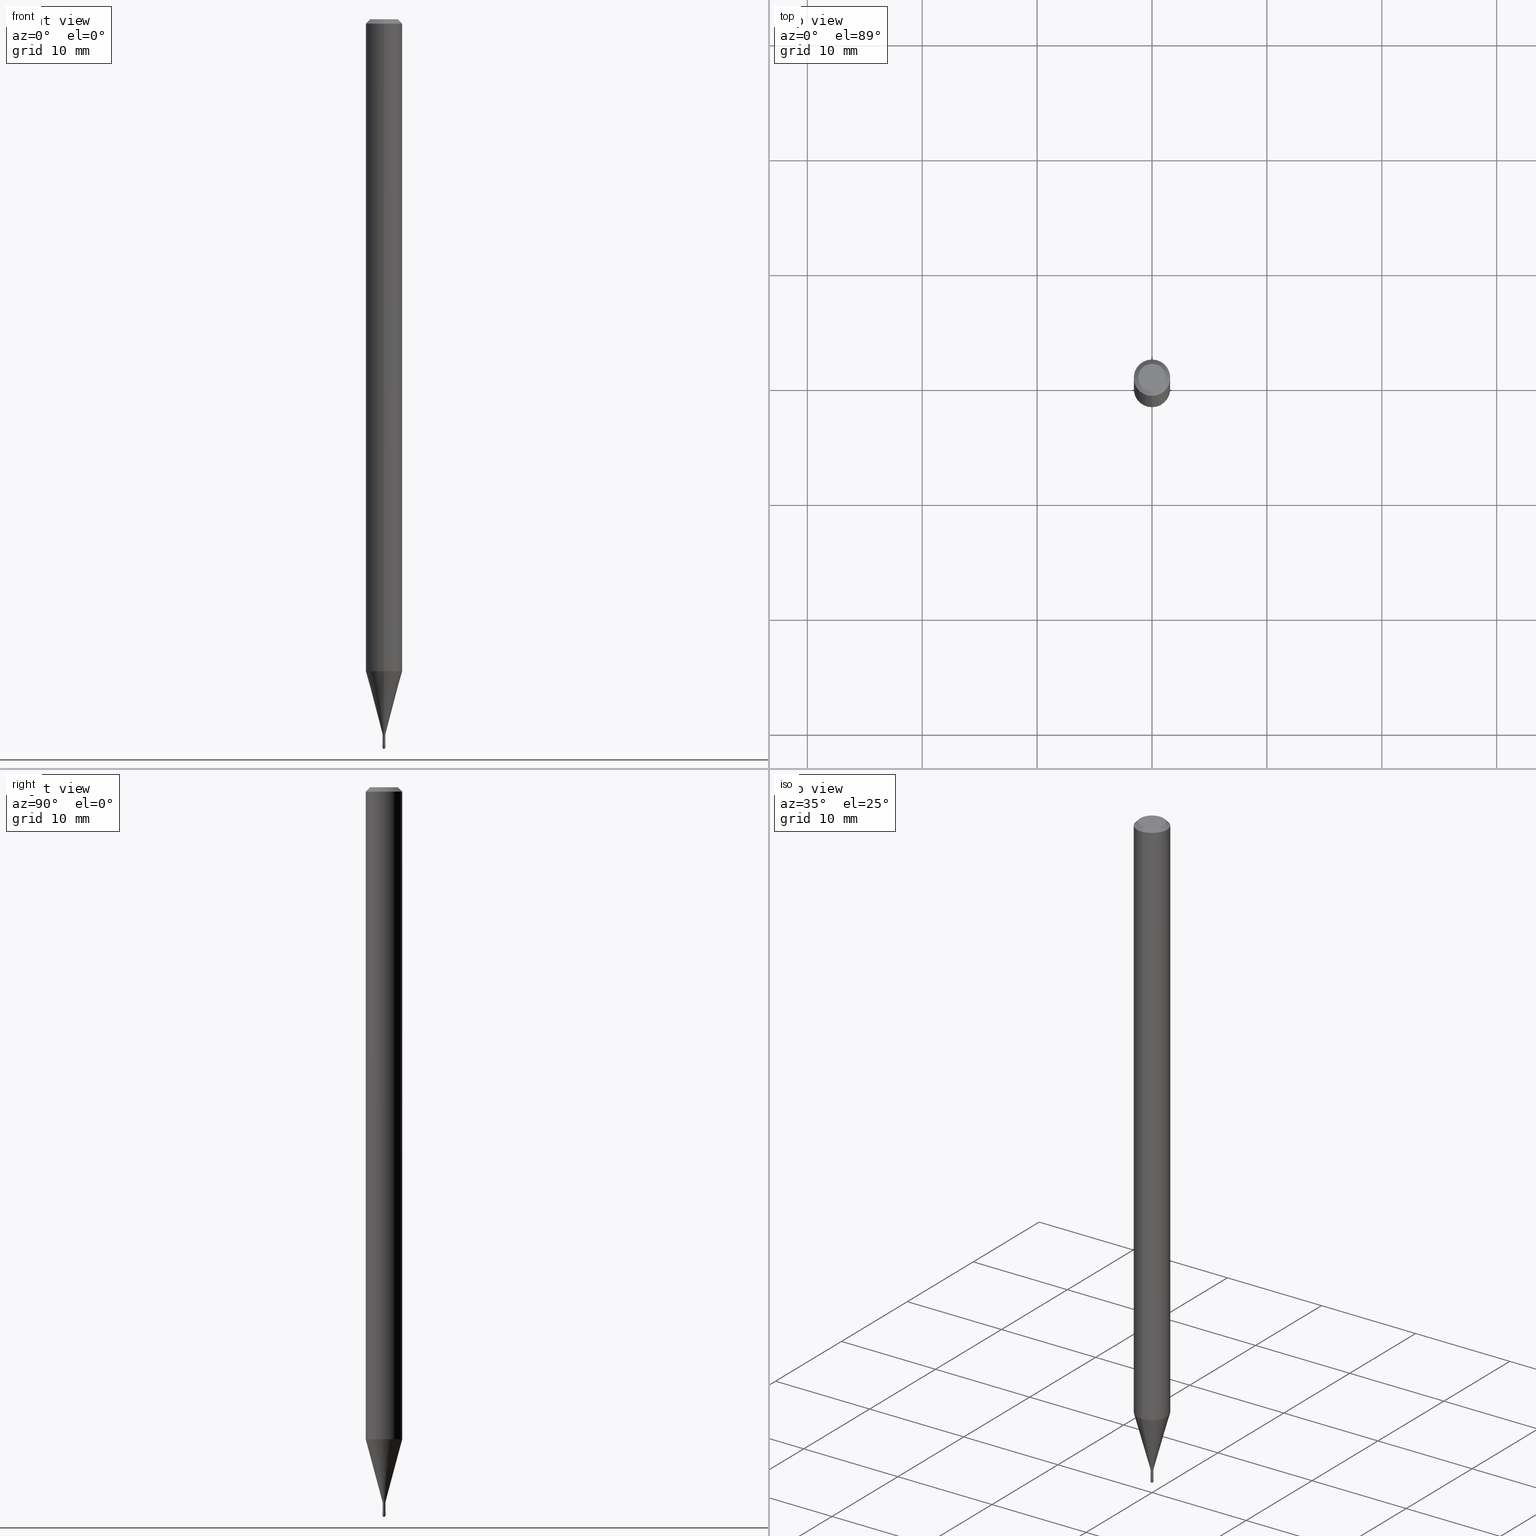
[diagram: canonical four-view strip — front | top / right | iso, engineering-drawing reading convention]
A machine part, canonical four-view strip (front | top / right | iso — engineering-drawing reading convention). The complete STEP part file that produces these views, byte-faithful:
ISO-10303-21;
HEADER;
FILE_DESCRIPTION (( 'STEP AP203' ),
    '1' );
FILE_NAME ('09411.STEP',
    '2024-04-09T22:51:25',
    ( '' ),
    ( '' ),
    'SwSTEP 2.0',
    'SolidWorks 2023',
    '' );
FILE_SCHEMA (( 'CONFIG_CONTROL_DESIGN' ));
ENDSEC;

DATA;
#1 = AXIS2_PLACEMENT_3D ( 'NONE', #196, #412, #189 ) ;
#2 = ORIENTED_EDGE ( 'NONE', *, *, #7, .F. ) ;
#3 = ORIENTED_EDGE ( 'NONE', *, *, #434, .T. ) ;
#4 = CYLINDRICAL_SURFACE ( 'NONE', #131, 0.004700000000000007991 ) ;
#5 = PERSON_AND_ORGANIZATION ( #227, #132 ) ;
#6 = ORIENTED_EDGE ( 'NONE', *, *, #65, .F. ) ;
#7 = EDGE_CURVE ( 'NONE', #94, #514, #266, .T. ) ;
#8 = DIRECTION ( 'NONE',  ( -6.982962677686265922E-15, -1.000000000000000000, 3.493109718909401107E-15 ) ) ;
#9 = APPROVAL_STATUS ( 'not_yet_approved' ) ;
#10 = DATE_TIME_ROLE ( 'creation_date' ) ;
#11 = ORIENTED_EDGE ( 'NONE', *, *, #445, .T. ) ;
#12 = CONICAL_SURFACE ( 'NONE', #473, 0.005211112605663986361, 0.2617993877991499629 ) ;
#13 = VECTOR ( 'NONE', #562, 39.37007874015748143 ) ;
#14 = DIRECTION ( 'NONE',  ( -6.982962677686265133E-15, -1.000000000000000000, 3.493109718909404657E-15 ) ) ;
#15 = DIRECTION ( 'NONE',  ( -2.444331714462359119E-29, 3.493109718909404657E-15, 1.000000000000000000 ) ) ;
#16 = FACE_OUTER_BOUND ( 'NONE', #273, .T. ) ;
#17 = PRODUCT_DEFINITION_SHAPE ( 'NONE', 'NONE',  #441 ) ;
#18 = EDGE_CURVE ( 'NONE', #46, #361, #148, .T. ) ;
#19 = ORIENTED_EDGE ( 'NONE', *, *, #342, .F. ) ;
#20 = DIRECTION ( 'NONE',  ( -2.445468806185136597E-29, 3.491481338843145583E-15, 1.000000000000000000 ) ) ;
#21 = AXIS2_PLACEMENT_3D ( 'NONE', #32, #294, #71 ) ;
#22 = DIRECTION ( 'NONE',  ( -2.438088387897960049E-29, 3.491481338843145188E-15, 1.000000000000000000 ) ) ;
#23 = EDGE_CURVE ( 'NONE', #529, #78, #43, .T. ) ;
#24 = DIRECTION ( 'NONE',  ( -2.445468806185136597E-29, 3.491481338843145583E-15, 1.000000000000000000 ) ) ;
#25 = ADVANCED_FACE ( 'NONE', ( #283 ), #243, .T. ) ;
#26 = AXIS2_PLACEMENT_3D ( 'NONE', #328, #444, #272 ) ;
#27 = LINE ( 'NONE', #515, #450 ) ;
#28 = ORIENTED_EDGE ( 'NONE', *, *, #309, .F. ) ;
#29 = DIRECTION ( 'NONE',  ( -6.982962677686265922E-15, -1.000000000000000000, 4.370956789862821150E-15 ) ) ;
#30 = CARTESIAN_POINT ( 'NONE',  ( 6.101444671431915719E-29, -8.711245940413648329E-15, -2.495000000000000107 ) ) ;
#31 = ORIENTED_EDGE ( 'NONE', *, *, #115, .T. ) ;
#32 = CARTESIAN_POINT ( 'NONE',  ( 3.316907271900976096E-16, 0.04749999999999999362, 3.177914578822727297E-17 ) ) ;
#33 = DIRECTION ( 'NONE',  ( -2.445468806185136877E-29, 3.491481338843145188E-15, 1.000000000000000000 ) ) ;
#34 = DIRECTION ( 'NONE',  ( 1.000000000000000000, -6.982962677686265922E-15, 4.883557194083112340E-29 ) ) ;
#35 = ORIENTED_EDGE ( 'NONE', *, *, #505, .F. ) ;
#36 = CARTESIAN_POINT ( 'NONE',  ( -3.281992458506486833E-17, -0.004700000000008682476, -2.482015037688680259 ) ) ;
#37 = AXIS2_PLACEMENT_3D ( 'NONE', #321, #152, #542 ) ;
#38 = LOCAL_TIME ( 18, 51, 25.00000000000000000, #223 ) ;
#39 = PLANE ( 'NONE',  #112 ) ;
#40 = LINE ( 'NONE', #276, #482 ) ;
#41 = APPROVAL_DATE_TIME ( #301, #384 ) ;
#42 = VERTEX_POINT ( 'NONE', #240 ) ;
#43 = CIRCLE ( 'NONE', #413, 0.06250000000000000000 ) ;
#44 = AXIS2_PLACEMENT_3D ( 'NONE', #127, #134, #8 ) ;
#45 = APPROVAL_PERSON_ORGANIZATION ( #5, #485, #82 ) ;
#46 = VERTEX_POINT ( 'NONE', #534 ) ;
#47 = APPLICATION_PROTOCOL_DEFINITION ( 'international standard', 'config_control_design', 1994, #228 ) ;
#48 = VERTEX_POINT ( 'NONE', #495 ) ;
#49 = MECHANICAL_CONTEXT ( 'NONE', #228, 'mechanical' ) ;
#50 = AXIS2_PLACEMENT_3D ( 'NONE', #496, #89, #446 ) ;
#51 = ORIENTED_EDGE ( 'NONE', *, *, #222, .T. ) ;
#52 = AXIS2_PLACEMENT_3D ( 'NONE', #551, #77, #241 ) ;
#53 = DIRECTION ( 'NONE',  ( -2.445468806185136597E-29, 3.491481338843145583E-15, 1.000000000000000000 ) ) ;
#54 = EDGE_CURVE ( 'NONE', #190, #126, #556, .T. ) ;
#55 = DIRECTION ( 'NONE',  ( -2.444331714462359119E-29, 3.493109718909404657E-15, 1.000000000000000000 ) ) ;
#56 = ORIENTED_EDGE ( 'NONE', *, *, #471, .F. ) ;
#57 = DIRECTION ( 'NONE',  ( -6.982962677686265922E-15, -1.000000000000000000, 3.493109718909401107E-15 ) ) ;
#58 = CARTESIAN_POINT ( 'NONE',  ( 0.004999999999999997502, -8.711245940413648329E-15, -2.484999999999999876 ) ) ;
#59 = CARTESIAN_POINT ( 'NONE',  ( 6.074164310438962886E-29, -8.680377651489870003E-15, -2.484999999999999876 ) ) ;
#60 = DIRECTION ( 'NONE',  ( -6.982962677686265133E-15, -1.000000000000000000, 3.493109718909404657E-15 ) ) ;
#61 = VECTOR ( 'NONE', #33, 39.37007874015748143 ) ;
#62 = LOCAL_TIME ( 18, 51, 25.00000000000000000, #183 ) ;
#63 = DIRECTION ( 'NONE',  ( -2.444331714462359119E-29, 3.493109718909404657E-15, 1.000000000000000000 ) ) ;
#64 = EDGE_CURVE ( 'NONE', #264, #513, #176, .T. ) ;
#65 = EDGE_CURVE ( 'NONE', #126, #529, #40, .T. ) ;
#66 = DIRECTION ( 'NONE',  ( -6.982962677686265922E-15, -1.000000000000000000, 0.000000000000000000 ) ) ;
#67 = ORIENTED_EDGE ( 'NONE', *, *, #212, .F. ) ;
#68 = DIRECTION ( 'NONE',  ( 1.000000000000000000, -6.982962677686266711E-15, 4.876176775795936914E-29 ) ) ;
#69 = ORIENTED_EDGE ( 'NONE', *, *, #208, .T. ) ;
#70 = DIRECTION ( 'NONE',  ( 6.982962677686265922E-15, 1.000000000000000000, -3.483106191921935554E-15 ) ) ;
#71 = DIRECTION ( 'NONE',  ( 6.982962677686265922E-15, 1.000000000000000000, -3.493109718909404263E-15 ) ) ;
#72 = EDGE_CURVE ( 'NONE', #117, #282, #492, .T. ) ;
#73 = AXIS2_PLACEMENT_3D ( 'NONE', #368, #292, #454 ) ;
#74 = DIRECTION ( 'NONE',  ( -6.982962677686265133E-15, -1.000000000000000000, 0.000000000000000000 ) ) ;
#75 = DIRECTION ( 'NONE',  ( 1.000000000000000000, -6.982962677686266711E-15, 4.876176775795936914E-29 ) ) ;
#76 = ORIENTED_EDGE ( 'NONE', *, *, #349, .F. ) ;
#77 = DIRECTION ( 'NONE',  ( -2.444331714462359119E-29, 3.493109718909404657E-15, 1.000000000000000000 ) ) ;
#78 = VERTEX_POINT ( 'NONE', #341 ) ;
#79 = AXIS2_PLACEMENT_3D ( 'NONE', #498, #20, #367 ) ;
#80 = CARTESIAN_POINT ( 'NONE',  ( 1.399769189447996812E-16, 0.01969999999999143964, -2.451974787463810923 ) ) ;
#81 = EDGE_CURVE ( 'NONE', #264, #48, #465, .T. ) ;
#82 = APPROVAL_ROLE ( '' ) ;
#83 = ADVANCED_FACE ( 'NONE', ( #466 ), #310, .T. ) ;
#84 = ORIENTED_EDGE ( 'NONE', *, *, #540, .T. ) ;
#85 = EDGE_CURVE ( 'NONE', #282, #48, #499, .T. ) ;
#86 = CARTESIAN_POINT ( 'NONE',  ( 0.000000000000000000, 0.000000000000000000, 0.000000000000000000 ) ) ;
#87 = ADVANCED_FACE ( 'NONE', ( #262 ), #145, .T. ) ;
#88 = AXIS2_PLACEMENT_3D ( 'NONE', #397, #295, #74 ) ;
#89 = DIRECTION ( 'NONE',  ( 2.444331714462359119E-29, -3.493109718909404657E-15, -1.000000000000000000 ) ) ;
#90 = DATE_AND_TIME ( #519, #62 ) ;
#91 = TOROIDAL_SURFACE ( 'NONE', #166, 0.01970000000000001958, 0.01500000000000000638 ) ;
#92 = AXIS2_PLACEMENT_3D ( 'NONE', #86, #527, #533 ) ;
#93 = ORIENTED_EDGE ( 'NONE', *, *, #115, .F. ) ;
#94 = VERTEX_POINT ( 'NONE', #395 ) ;
#95 = ADVANCED_FACE ( 'NONE', ( #263 ), #91, .F. ) ;
#96 = CALENDAR_DATE ( 2024, 9, 4 ) ;
#97 = ORIENTED_EDGE ( 'NONE', *, *, #437, .T. ) ;
#98 = PERSON_AND_ORGANIZATION ( #227, #132 ) ;
#99 = CARTESIAN_POINT ( 'NONE',  ( 6.101444671431915719E-29, -8.711245940413648329E-15, -2.495000000000000107 ) ) ;
#100 = CARTESIAN_POINT ( 'NONE',  ( 3.666497571693559050E-31, -5.239664578364136248E-17, -0.01500000000000008271 ) ) ;
#101 = ORIENTED_EDGE ( 'NONE', *, *, #417, .F. ) ;
#102 = AXIS2_PLACEMENT_3D ( 'NONE', #334, #477, #120 ) ;
#103 = CARTESIAN_POINT ( 'NONE',  ( 3.446132268442561466E-17, 0.004699999999991343047, -2.482015037688680259 ) ) ;
#104 = AXIS2_PLACEMENT_3D ( 'NONE', #518, #462, #508 ) ;
#105 = ORIENTED_EDGE ( 'NONE', *, *, #530, .T. ) ;
#106 = VERTEX_POINT ( 'NONE', #144 ) ;
#107 = CARTESIAN_POINT ( 'NONE',  ( 5.983950142056131957E-29, -8.551455710782364148E-15, -2.448092501787273001 ) ) ;
#108 = CARTESIAN_POINT ( 'NONE',  ( -0.004999999999999997502, -8.658261396931429042E-15, -2.495000000000000551 ) ) ;
#109 = ADVANCED_FACE ( 'NONE', ( #319 ), #381, .T. ) ;
#110 = DIRECTION ( 'NONE',  ( 1.000000000000000000, -6.982962677686142071E-15, 0.000000000000000000 ) ) ;
#111 = CIRCLE ( 'NONE', #102, 0.005000000000000040870 ) ;
#112 = AXIS2_PLACEMENT_3D ( 'NONE', #419, #168, #116 ) ;
#113 = DIRECTION ( 'NONE',  ( -6.982962677686266711E-15, -1.000000000000000000, 0.000000000000000000 ) ) ;
#114 = EDGE_LOOP ( 'NONE', ( #2, #105, #330, #528 ) ) ;
#115 = EDGE_CURVE ( 'NONE', #401, #190, #246, .T. ) ;
#116 = DIRECTION ( 'NONE',  ( -6.982962677686265922E-15, -1.000000000000000000, 3.493109718909404263E-15 ) ) ;
#117 = VERTEX_POINT ( 'NONE', #549 ) ;
#118 = EDGE_CURVE ( 'NONE', #42, #126, #331, .T. ) ;
#119 = PLANE ( 'NONE',  #21 ) ;
#120 = DIRECTION ( 'NONE',  ( -7.105427357600999492E-15, -1.000000000000000000, 0.000000000000000000 ) ) ;
#121 = AXIS2_PLACEMENT_3D ( 'NONE', #252, #507, #244 ) ;
#122 = EDGE_LOOP ( 'NONE', ( #431, #258 ) ) ;
#123 = CARTESIAN_POINT ( 'NONE',  ( -4.364351673553916201E-16, -0.06250000000000000000, 6.963927563230838790E-16 ) ) ;
#124 = ORIENTED_EDGE ( 'NONE', *, *, #478, .T. ) ;
#125 = CYLINDRICAL_SURFACE ( 'NONE', #400, 0.004999999999999997502 ) ;
#126 = VERTEX_POINT ( 'NONE', #467 ) ;
#127 = CARTESIAN_POINT ( 'NONE',  ( -1.169113584055446105E-44, 1.669184350826100908E-30, 4.780733988912460139E-16 ) ) ;
#128 = DIRECTION ( 'NONE',  ( -2.444331714462359119E-29, 3.493109718909404657E-15, 1.000000000000000000 ) ) ;
#129 = DIRECTION ( 'NONE',  ( -2.445468806185136597E-29, 3.491481338843145583E-15, 1.000000000000000000 ) ) ;
#130 = CARTESIAN_POINT ( 'NONE',  ( -1.169113584055446105E-44, 1.669184350826100908E-30, 4.780733988912460139E-16 ) ) ;
#131 = AXIS2_PLACEMENT_3D ( 'NONE', #488, #15, #57 ) ;
#132 = ORGANIZATION ( 'UNSPECIFIED', 'UNSPECIFIED', '' ) ;
#133 = PERSON_AND_ORGANIZATION ( #227, #132 ) ;
#134 = DIRECTION ( 'NONE',  ( -2.444331714462359119E-29, 3.493109718909404657E-15, 1.000000000000000000 ) ) ;
#135 = CALENDAR_DATE ( 2024, 9, 4 ) ;
#136 = ORIENTED_EDGE ( 'NONE', *, *, #171, .F. ) ;
#137 = VERTEX_POINT ( 'NONE', #389 ) ;
#138 = PERSON_AND_ORGANIZATION_ROLE ( 'design_owner' ) ;
#139 = DIRECTION ( 'NONE',  ( 1.000000000000000000, -6.982962677686336130E-15, 0.000000000000000000 ) ) ;
#140 = ORIENTED_EDGE ( 'NONE', *, *, #175, .F. ) ;
#141 = AXIS2_PLACEMENT_3D ( 'NONE', #100, #291, #70 ) ;
#142 = AXIS2_PLACEMENT_3D ( 'NONE', #80, #383, #512 ) ;
#143 = ORIENTED_EDGE ( 'NONE', *, *, #358, .F. ) ;
#144 = CARTESIAN_POINT ( 'NONE',  ( -3.491481338837061715E-17, -0.005000000000008683262, -2.484999999999999876 ) ) ;
#145 = SPHERICAL_SURFACE ( 'NONE', #156, 0.005000000000000040870 ) ;
#146 = CC_DESIGN_PERSON_AND_ORGANIZATION_ASSIGNMENT ( #257, #178, ( #436 ) ) ;
#147 = DIRECTION ( 'NONE',  ( -1.000000000000000000, 6.982962677686265922E-15, -4.883557194083112340E-29 ) ) ;
#148 = CIRCLE ( 'NONE', #459, 0.005000000000000040870 ) ;
#149 = TOROIDAL_SURFACE ( 'NONE', #316, 0.01970000000000000570, 0.01500000000000002547 ) ;
#150 = CARTESIAN_POINT ( 'NONE',  ( 5.983950142056131957E-29, -8.551455710782364148E-15, -2.448092501787273001 ) ) ;
#151 = LINE ( 'NONE', #274, #460 ) ;
#152 = DIRECTION ( 'NONE',  ( -2.444331714462359119E-29, 3.493109718909404657E-15, 1.000000000000000000 ) ) ;
#153 = DIRECTION ( 'NONE',  ( -2.444331714462359119E-29, 3.493109718909404657E-15, 1.000000000000000000 ) ) ;
#154 = CARTESIAN_POINT ( 'NONE',  ( 5.983950142056131957E-29, -8.551455710782364148E-15, -2.448092501787273001 ) ) ;
#155 = ORIENTED_EDGE ( 'NONE', *, *, #18, .F. ) ;
#156 = AXIS2_PLACEMENT_3D ( 'NONE', #99, #487, #224 ) ;
#157 = DIRECTION ( 'NONE',  ( -2.444331714462359119E-29, 3.493109718909404657E-15, 1.000000000000000000 ) ) ;
#158 = LOCAL_TIME ( 18, 51, 25.00000000000000000, #484 ) ;
#159 = ADVANCED_FACE ( 'NONE', ( #172 ), #354, .T. ) ;
#160 = EDGE_LOOP ( 'NONE', ( #6, #124, #347, #195 ) ) ;
#161 = DIRECTION ( 'NONE',  ( -2.444331714462359119E-29, 3.493109718909404657E-15, 1.000000000000000000 ) ) ;
#162 = DIRECTION ( 'NONE',  ( -2.444331714462359119E-29, 3.493109718909404263E-15, 1.000000000000000000 ) ) ;
#163 = FACE_OUTER_BOUND ( 'NONE', #165, .T. ) ;
#164 = DIRECTION ( 'NONE',  ( 6.982962677686265922E-15, 1.000000000000000000, 0.000000000000000000 ) ) ;
#165 = EDGE_LOOP ( 'NONE', ( #35, #423, #69, #136 ) ) ;
#166 = AXIS2_PLACEMENT_3D ( 'NONE', #483, #221, #14 ) ;
#167 = AXIS2_PLACEMENT_3D ( 'NONE', #449, #363, #110 ) ;
#168 = DIRECTION ( 'NONE',  ( -2.444331714462359119E-29, 3.493109718909404263E-15, 1.000000000000000000 ) ) ;
#169 = ORIENTED_EDGE ( 'NONE', *, *, #560, .F. ) ;
#170 = EDGE_LOOP ( 'NONE', ( #56, #101, #394, #198 ) ) ;
#171 = EDGE_CURVE ( 'NONE', #553, #106, #546, .T. ) ;
#172 = FACE_OUTER_BOUND ( 'NONE', #203, .T. ) ;
#173 = DIRECTION ( 'NONE',  ( -2.444331714462359119E-29, 3.493109718909404263E-15, 1.000000000000000000 ) ) ;
#174 = APPROVAL_DATE_TIME ( #90, #318 ) ;
#175 = EDGE_CURVE ( 'NONE', #46, #513, #111, .T. ) ;
#176 = CIRCLE ( 'NONE', #509, 0.004999999999999997502 ) ;
#177 = ADVANCED_BREP_SHAPE_REPRESENTATION ( '09411', ( #296, #293, #92 ), #547 ) ;
#178 = PERSON_AND_ORGANIZATION_ROLE ( 'design_supplier' ) ;
#179 = EDGE_LOOP ( 'NONE', ( #76, #206, #440, #479 ) ) ;
#180 = PRODUCT ( '09411', '09411', '', ( #49 ) ) ;
#181 = ORIENTED_EDGE ( 'NONE', *, *, #437, .F. ) ;
#182 = VECTOR ( 'NONE', #234, 39.37007874015748143 ) ;
#183 = COORDINATED_UNIVERSAL_TIME_OFFSET ( 5, 0, .BEHIND. ) ;
#184 = CC_DESIGN_APPROVAL ( #384, ( #436 ) ) ;
#185 = ADVANCED_FACE ( 'NONE', ( #391 ), #4, .T. ) ;
#186 = DIRECTION ( 'NONE',  ( 7.105427357601000281E-15, 1.000000000000000000, 0.000000000000000000 ) ) ;
#187 = ADVANCED_FACE ( 'NONE', ( #407 ), #210, .T. ) ;
#188 = EDGE_CURVE ( 'NONE', #48, #282, #260, .T. ) ;
#189 = DIRECTION ( 'NONE',  ( 1.000000000000000000, -6.982962677686142071E-15, 0.000000000000000000 ) ) ;
#190 = VERTEX_POINT ( 'NONE', #375 ) ;
#191 = AXIS2_PLACEMENT_3D ( 'NONE', #403, #409, #186 ) ;
#192 = CARTESIAN_POINT ( 'NONE',  ( 5.983950142056131957E-29, -8.551455710782364148E-15, -2.448092501787273001 ) ) ;
#193 = LOCAL_TIME ( 18, 51, 25.00000000000000000, #253 ) ;
#194 = DIRECTION ( 'NONE',  ( 1.000000000000000000, -6.982962677686265922E-15, 4.876176775795935793E-29 ) ) ;
#195 = ORIENTED_EDGE ( 'NONE', *, *, #23, .F. ) ;
#196 = CARTESIAN_POINT ( 'NONE',  ( 6.101444671431917961E-29, -8.711245940413649907E-15, -2.495000000000000551 ) ) ;
#197 = DIRECTION ( 'NONE',  ( 6.982962677686265133E-15, 1.000000000000000000, 0.000000000000000000 ) ) ;
#198 = ORIENTED_EDGE ( 'NONE', *, *, #342, .T. ) ;
#199 = AXIS2_PLACEMENT_3D ( 'NONE', #525, #53, #139 ) ;
#200 = CIRCLE ( 'NONE', #121, 0.06250000000000000000 ) ;
#201 = CARTESIAN_POINT ( 'NONE',  ( -3.638900483451220324E-17, -0.005211112605672538547, -2.448092501787273001 ) ) ;
#202 = CARTESIAN_POINT ( 'NONE',  ( 0.000000000000000000, 0.000000000000000000, 0.000000000000000000 ) ) ;
#203 = EDGE_LOOP ( 'NONE', ( #84, #544, #19, #169 ) ) ;
#204 =( LENGTH_UNIT ( ) NAMED_UNIT ( * ) SI_UNIT ( $, .METRE. ) );
#205 = ORIENTED_EDGE ( 'NONE', *, *, #432, .T. ) ;
#206 = ORIENTED_EDGE ( 'NONE', *, *, #540, .F. ) ;
#207 = FACE_OUTER_BOUND ( 'NONE', #503, .T. ) ;
#208 = EDGE_CURVE ( 'NONE', #137, #106, #531, .T. ) ;
#209 = CLOSED_SHELL ( 'NONE', ( #565, #25, #456, #87, #353 ) ) ;
#210 = CONICAL_SURFACE ( 'NONE', #50, 0.06250000000000000000, 0.7853981633974483900 ) ;
#211 = CARTESIAN_POINT ( 'NONE',  ( 4.440892098501175406E-16, 0.06249999999999995143, -0.01500000000000030129 ) ) ;
#212 = EDGE_CURVE ( 'NONE', #514, #94, #267, .T. ) ;
#213 = PERSON_AND_ORGANIZATION_ROLE ( 'creator' ) ;
#214 = SHAPE_DEFINITION_REPRESENTATION ( #17, #177 ) ;
#215 = ADVANCED_FACE ( 'NONE', ( #541 ), #387, .F. ) ;
#216 = CIRCLE ( 'NONE', #364, 0.005211112605663986361 ) ;
#217 = AXIS2_PLACEMENT_3D ( 'NONE', #494, #22, #194 ) ;
#218 = DIRECTION ( 'NONE',  ( -2.444331714462359119E-29, 3.493109718909404657E-15, 1.000000000000000000 ) ) ;
#219 = PERSON_AND_ORGANIZATION ( #227, #132 ) ;
#220 = EDGE_LOOP ( 'NONE', ( #248, #11, #31, #268 ) ) ;
#221 = DIRECTION ( 'NONE',  ( -2.444331714462359119E-29, 3.493109718909404657E-15, 1.000000000000000000 ) ) ;
#222 = EDGE_CURVE ( 'NONE', #514, #529, #151, .T. ) ;
#223 = COORDINATED_UNIVERSAL_TIME_OFFSET ( 5, 0, .BEHIND. ) ;
#224 = DIRECTION ( 'NONE',  ( 6.982962677686265922E-15, 1.000000000000000000, 0.000000000000000000 ) ) ;
#225 = CIRCLE ( 'NONE', #520, 0.01500000000000002373 ) ;
#226 = CIRCLE ( 'NONE', #251, 0.005211112605663986361 ) ;
#227 = PERSON ( 'UNSPECIFIED', 'UNSPECIFIED', 'UNSPECIFIED', ('UNSPECIFIED'), ('UNSPECIFIED'), ('UNSPECIFIED') ) ;
#228 = APPLICATION_CONTEXT ( 'configuration controlled 3d designs of mechanical parts and assemblies' ) ;
#229 = CARTESIAN_POINT ( 'NONE',  ( 5.993247169954418774E-29, -8.565292726233885242E-15, -2.451974787463810923 ) ) ;
#230 = DIRECTION ( 'NONE',  ( 4.937700262164548042E-15, 0.7071067811865451302, -0.7071067811865499042 ) ) ;
#231 = ORIENTED_EDGE ( 'NONE', *, *, #65, .T. ) ;
#232 = CARTESIAN_POINT ( 'NONE',  ( -3.638900483451220324E-17, -0.005211112605672538547, -2.448092501787273001 ) ) ;
#233 = DESIGN_CONTEXT ( 'detailed design', #550, 'design' ) ;
#234 = DIRECTION ( 'NONE',  ( -2.445468806185136877E-29, 3.491481338843145188E-15, 1.000000000000000000 ) ) ;
#235 = AXIS2_PLACEMENT_3D ( 'NONE', #439, #307, #476 ) ;
#236 = CC_DESIGN_PERSON_AND_ORGANIZATION_ASSIGNMENT ( #219, #306, ( #511 ) ) ;
#237 = CARTESIAN_POINT ( 'NONE',  ( 0.000000000000000000, 0.000000000000000000, 0.000000000000000000 ) ) ;
#238 = DIRECTION ( 'NONE',  ( -6.982962677686265922E-15, -1.000000000000000000, 0.000000000000000000 ) ) ;
#239 = DIRECTION ( 'NONE',  ( -6.982962677686265922E-15, -1.000000000000000000, 0.000000000000000000 ) ) ;
#240 = CARTESIAN_POINT ( 'NONE',  ( 2.405581959610007950E-16, 0.005211112605655434174, -2.448092501787273001 ) ) ;
#241 = DIRECTION ( 'NONE',  ( -6.982962677686265922E-15, -1.000000000000000000, 0.000000000000000000 ) ) ;
#242 = CIRCLE ( 'NONE', #1, 0.004999999999999997502 ) ;
#243 = SPHERICAL_SURFACE ( 'NONE', #299, 0.005000000000000040870 ) ;
#244 = DIRECTION ( 'NONE',  ( -6.982962677686265922E-15, -1.000000000000000000, 4.370956789862821150E-15 ) ) ;
#245 = CARTESIAN_POINT ( 'NONE',  ( 5.461339705824889483E-29, -7.804611252969332594E-15, -2.234287463322519596 ) ) ;
#246 = LINE ( 'NONE', #201, #351 ) ;
#247 = FACE_OUTER_BOUND ( 'NONE', #122, .T. ) ;
#248 = ORIENTED_EDGE ( 'NONE', *, *, #118, .F. ) ;
#249 = DIRECTION ( 'NONE',  ( -6.982962677686265922E-15, -1.000000000000000000, 3.493109718909404263E-15 ) ) ;
#250 = AXIS2_PLACEMENT_3D ( 'NONE', #390, #374, #60 ) ;
#251 = AXIS2_PLACEMENT_3D ( 'NONE', #150, #317, #66 ) ;
#252 = CARTESIAN_POINT ( 'NONE',  ( 5.461339705824889483E-29, -7.804611252969332594E-15, -2.234287463322519596 ) ) ;
#253 = COORDINATED_UNIVERSAL_TIME_OFFSET ( 5, 0, .BEHIND. ) ;
#254 = ADVANCED_FACE ( 'NONE', ( #163 ), #359, .F. ) ;
#255 = VERTEX_POINT ( 'NONE', #103 ) ;
#256 = ADVANCED_FACE ( 'NONE', ( #536 ), #12, .T. ) ;
#257 = PERSON_AND_ORGANIZATION ( #227, #132 ) ;
#258 = ORIENTED_EDGE ( 'NONE', *, *, #208, .F. ) ;
#259 = EDGE_LOOP ( 'NONE', ( #523, #231, #28, #280 ) ) ;
#260 = CIRCLE ( 'NONE', #199, 0.004999999999999997502 ) ;
#261 = CONICAL_SURFACE ( 'NONE', #532, 0.005211112605663986361, 0.2617993877991499629 ) ;
#262 = FACE_OUTER_BOUND ( 'NONE', #463, .T. ) ;
#263 = FACE_OUTER_BOUND ( 'NONE', #179, .T. ) ;
#264 = VERTEX_POINT ( 'NONE', #108 ) ;
#265 = ORIENTED_EDGE ( 'NONE', *, *, #188, .F. ) ;
#266 = CIRCLE ( 'NONE', #315, 0.04749999999999999362 ) ;
#267 = CIRCLE ( 'NONE', #73, 0.04749999999999999362 ) ;
#268 = ORIENTED_EDGE ( 'NONE', *, *, #478, .F. ) ;
#269 = CARTESIAN_POINT ( 'NONE',  ( 5.993439736059896180E-29, -8.565016960610659834E-15, -2.451974787463810923 ) ) ;
#270 = DIRECTION ( 'NONE',  ( -6.982962677686265133E-15, -1.000000000000000000, 3.493109718909404657E-15 ) ) ;
#271 = EDGE_CURVE ( 'NONE', #513, #117, #242, .T. ) ;
#272 = DIRECTION ( 'NONE',  ( -6.982962677686265922E-15, -1.000000000000000000, 0.000000000000000000 ) ) ;
#273 = EDGE_LOOP ( 'NONE', ( #555, #323, #486, #422, #265 ) ) ;
#274 = CARTESIAN_POINT ( 'NONE',  ( 4.364351673553919652E-16, 0.06249999999999995143, -0.01500000000000030129 ) ) ;
#275 = CARTESIAN_POINT ( 'NONE',  ( 6.101444671431915719E-29, -8.711245940413648329E-15, -2.495000000000000107 ) ) ;
#276 = CARTESIAN_POINT ( 'NONE',  ( 4.440892098500625669E-16, 0.06250000000000000000, 2.597540414594082475E-16 ) ) ;
#277 = AXIS2_PLACEMENT_3D ( 'NONE', #59, #304, #336 ) ;
#278 = CYLINDRICAL_SURFACE ( 'NONE', #340, 0.004999999999999997502 ) ;
#279 = ORIENTED_EDGE ( 'NONE', *, *, #72, .F. ) ;
#280 = ORIENTED_EDGE ( 'NONE', *, *, #535, .F. ) ;
#281 = FACE_OUTER_BOUND ( 'NONE', #220, .T. ) ;
#282 = VERTEX_POINT ( 'NONE', #58 ) ;
#283 = FACE_OUTER_BOUND ( 'NONE', #343, .T. ) ;
#284 = EDGE_LOOP ( 'NONE', ( #313, #322, #458, #93 ) ) ;
#285 = LINE ( 'NONE', #123, #500 ) ;
#286 = ORIENTED_EDGE ( 'NONE', *, *, #188, .T. ) ;
#287 = CARTESIAN_POINT ( 'NONE',  ( -3.552713678794411983E-17, -0.005000000000008730100, -2.495000000000000551 ) ) ;
#288 = CIRCLE ( 'NONE', #37, 0.06250000000000000000 ) ;
#289 = ORIENTED_EDGE ( 'NONE', *, *, #85, .F. ) ;
#290 = CIRCLE ( 'NONE', #414, 0.004700000000000012328 ) ;
#291 = DIRECTION ( 'NONE',  ( 2.444331714462359119E-29, -3.493109718909404657E-15, -1.000000000000000000 ) ) ;
#292 = DIRECTION ( 'NONE',  ( -2.444331714462359119E-29, 3.493109718909404657E-15, 1.000000000000000000 ) ) ;
#293 = MANIFOLD_SOLID_BREP ( 'Body-Move/Copy2[2]', #386 ) ;
#294 = DIRECTION ( 'NONE',  ( 2.444331714462359119E-29, -3.493109718909404263E-15, -1.000000000000000000 ) ) ;
#295 = DIRECTION ( 'NONE',  ( -1.000000000000000000, 6.982962677686265922E-15, -4.883557194083112340E-29 ) ) ;
#296 = MANIFOLD_SOLID_BREP ( 'Body-Move/Copy2[1]', #209 ) ;
#297 = ORIENTED_EDGE ( 'NONE', *, *, #560, .T. ) ;
#298 = DIRECTION ( 'NONE',  ( -6.982962677686265922E-15, -1.000000000000000000, 3.493109718909404263E-15 ) ) ;
#299 = AXIS2_PLACEMENT_3D ( 'NONE', #30, #376, #164 ) ;
#300 = CC_DESIGN_APPROVAL ( #485, ( #441 ) ) ;
#301 = DATE_AND_TIME ( #96, #193 ) ;
#302 = ORIENTED_EDGE ( 'NONE', *, *, #7, .T. ) ;
#303 = SECURITY_CLASSIFICATION_LEVEL ( 'unclassified' ) ;
#304 = DIRECTION ( 'NONE',  ( -2.444331714462359119E-29, 3.493109718909404657E-15, 1.000000000000000000 ) ) ;
#305 = VERTEX_POINT ( 'NONE', #370 ) ;
#306 = PERSON_AND_ORGANIZATION_ROLE ( 'classification_officer' ) ;
#307 = DIRECTION ( 'NONE',  ( -2.445468806185136597E-29, 3.491481338843145583E-15, 1.000000000000000000 ) ) ;
#308 = AXIS2_PLACEMENT_3D ( 'NONE', #245, #63, #29 ) ;
#309 = EDGE_CURVE ( 'NONE', #78, #529, #288, .T. ) ;
#310 = CYLINDRICAL_SURFACE ( 'NONE', #371, 0.06250000000000000000 ) ;
#311 = ORIENTED_EDGE ( 'NONE', *, *, #448, .F. ) ;
#312 = PERSON_AND_ORGANIZATION ( #227, #132 ) ;
#313 = ORIENTED_EDGE ( 'NONE', *, *, #417, .T. ) ;
#314 = CARTESIAN_POINT ( 'NONE',  ( -3.281992458506554010E-17, -0.004700000000008567984, -2.451974787463810923 ) ) ;
#315 = AXIS2_PLACEMENT_3D ( 'NONE', #325, #335, #457 ) ;
#316 = AXIS2_PLACEMENT_3D ( 'NONE', #229, #153, #324 ) ;
#317 = DIRECTION ( 'NONE',  ( -2.444331714462359119E-29, 3.493109718909404657E-15, 1.000000000000000000 ) ) ;
#318 = APPROVAL ( #385, 'UNSPECIFIED' ) ;
#319 = FACE_OUTER_BOUND ( 'NONE', #416, .T. ) ;
#320 = CARTESIAN_POINT ( 'NONE',  ( 6.101444671431917961E-29, -8.711245940413649907E-15, -2.495000000000000551 ) ) ;
#321 = CARTESIAN_POINT ( 'NONE',  ( 3.666497571693559050E-31, -5.239664578364136248E-17, -0.01500000000000008271 ) ) ;
#322 = ORIENTED_EDGE ( 'NONE', *, *, #118, .T. ) ;
#323 = ORIENTED_EDGE ( 'NONE', *, *, #64, .T. ) ;
#324 = DIRECTION ( 'NONE',  ( -6.982962677686265133E-15, -1.000000000000000000, 3.493109718909404657E-15 ) ) ;
#325 = CARTESIAN_POINT ( 'NONE',  ( 2.015285171659929745E-45, -2.895527618967988786E-31, -8.266968401839803146E-17 ) ) ;
#326 = CIRCLE ( 'NONE', #26, 0.004700000000000003654 ) ;
#327 = AXIS2_PLACEMENT_3D ( 'NONE', #269, #443, #537 ) ;
#328 = CARTESIAN_POINT ( 'NONE',  ( 5.993439736059896180E-29, -8.565016960610659834E-15, -2.451974787463810923 ) ) ;
#329 = DIRECTION ( 'NONE',  ( -6.982962677686265922E-15, -1.000000000000000000, 3.483106191921935554E-15 ) ) ;
#330 = ORIENTED_EDGE ( 'NONE', *, *, #309, .T. ) ;
#331 = LINE ( 'NONE', #411, #426 ) ;
#332 = DIRECTION ( 'NONE',  ( -6.982962677686265922E-15, -1.000000000000000000, 0.000000000000000000 ) ) ;
#333 = DIRECTION ( 'NONE',  ( -2.445468806185136597E-29, 3.491481338843145583E-15, 1.000000000000000000 ) ) ;
#334 = CARTESIAN_POINT ( 'NONE',  ( 6.101444671431915719E-29, -8.711245940413648329E-15, -2.495000000000000107 ) ) ;
#335 = DIRECTION ( 'NONE',  ( -2.444331714462359119E-29, 3.493109718909404657E-15, 1.000000000000000000 ) ) ;
#336 = DIRECTION ( 'NONE',  ( -6.982962677686266711E-15, -1.000000000000000000, 0.000000000000000000 ) ) ;
#337 = VERTEX_POINT ( 'NONE', #314 ) ;
#338 = FACE_OUTER_BOUND ( 'NONE', #418, .T. ) ;
#339 = AXIS2_PLACEMENT_3D ( 'NONE', #561, #128, #270 ) ;
#340 = AXIS2_PLACEMENT_3D ( 'NONE', #237, #24, #68 ) ;
#341 = CARTESIAN_POINT ( 'NONE',  ( -4.364351673553912750E-16, -0.06250000000000005551, -0.01499999999999986587 ) ) ;
#342 = EDGE_CURVE ( 'NONE', #337, #305, #326, .T. ) ;
#343 = EDGE_LOOP ( 'NONE', ( #155, #493, #357, #181 ) ) ;
#344 = APPROVAL_PERSON_ORGANIZATION ( #352, #384, #522 ) ;
#345 = CC_DESIGN_PERSON_AND_ORGANIZATION_ASSIGNMENT ( #98, #138, ( #180 ) ) ;
#346 = DIRECTION ( 'NONE',  ( -2.444331714462359119E-29, 3.493109718909404263E-15, 1.000000000000000000 ) ) ;
#347 = ORIENTED_EDGE ( 'NONE', *, *, #535, .T. ) ;
#348 = CARTESIAN_POINT ( 'NONE',  ( 6.066868072394927886E-29, -8.669950850629620107E-15, -2.482015037688680259 ) ) ;
#349 = EDGE_CURVE ( 'NONE', #255, #137, #399, .T. ) ;
#350 = CALENDAR_DATE ( 2024, 9, 4 ) ;
#351 = VECTOR ( 'NONE', #504, 39.37007874015748143 ) ;
#352 = PERSON_AND_ORGANIZATION ( #227, #132 ) ;
#353 = ADVANCED_FACE ( 'NONE', ( #16 ), #278, .T. ) ;
#354 = CYLINDRICAL_SURFACE ( 'NONE', #44, 0.004700000000000007991 ) ;
#355 = PERSON_AND_ORGANIZATION ( #227, #132 ) ;
#356 = DATE_AND_TIME ( #350, #158 ) ;
#357 = ORIENTED_EDGE ( 'NONE', *, *, #64, .F. ) ;
#358 = EDGE_CURVE ( 'NONE', #401, #337, #225, .T. ) ;
#359 = TOROIDAL_SURFACE ( 'NONE', #250, 0.01970000000000001958, 0.01500000000000000638 ) ;
#360 = CIRCLE ( 'NONE', #104, 0.005000000000000001839 ) ;
#361 = VERTEX_POINT ( 'NONE', #543 ) ;
#362 = FACE_OUTER_BOUND ( 'NONE', #369, .T. ) ;
#363 = DIRECTION ( 'NONE',  ( -2.445468806185136597E-29, 3.491481338843145583E-15, 1.000000000000000000 ) ) ;
#364 = AXIS2_PLACEMENT_3D ( 'NONE', #192, #404, #239 ) ;
#365 = FACE_OUTER_BOUND ( 'NONE', #470, .T. ) ;
#366 = ADVANCED_FACE ( 'NONE', ( #362 ), #149, .F. ) ;
#367 = DIRECTION ( 'NONE',  ( 1.000000000000000000, -6.982962677686142071E-15, 0.000000000000000000 ) ) ;
#368 = CARTESIAN_POINT ( 'NONE',  ( 2.015285171659929745E-45, -2.895527618967988786E-31, -8.266968401839803146E-17 ) ) ;
#369 = EDGE_LOOP ( 'NONE', ( #377, #469, #205, #143 ) ) ;
#370 = CARTESIAN_POINT ( 'NONE',  ( 3.339550858078541536E-17, 0.004699999999991438457, -2.451974787463810923 ) ) ;
#371 = AXIS2_PLACEMENT_3D ( 'NONE', #130, #218, #298 ) ;
#372 = CIRCLE ( 'NONE', #52, 0.004700000000000012328 ) ;
#373 = CYLINDRICAL_SURFACE ( 'NONE', #538, 0.06250000000000000000 ) ;
#374 = DIRECTION ( 'NONE',  ( -2.444331714462359119E-29, 3.493109718909404657E-15, 1.000000000000000000 ) ) ;
#375 = CARTESIAN_POINT ( 'NONE',  ( -4.364351673553370901E-16, -0.06250000000000781319, -2.234287463322519152 ) ) ;
#376 = DIRECTION ( 'NONE',  ( -1.000000000000000000, 6.982962677686265922E-15, -4.883557194083113462E-29 ) ) ;
#377 = ORIENTED_EDGE ( 'NONE', *, *, #445, .F. ) ;
#378 = LENGTH_MEASURE_WITH_UNIT ( LENGTH_MEASURE( 0.02539999999999999897 ), #204 );
#379 = ORIENTED_EDGE ( 'NONE', *, *, #271, .F. ) ;
#380 =( NAMED_UNIT ( * ) SI_UNIT ( $, .STERADIAN. ) SOLID_ANGLE_UNIT ( ) );
#381 = CONICAL_SURFACE ( 'NONE', #141, 0.06250000000000000000, 0.7853981633974483900 ) ;
#382 = CARTESIAN_POINT ( 'NONE',  ( -0.004999999999999997502, 3.552713678800499154E-17, -2.459467545127451822E-31 ) ) ;
#383 = DIRECTION ( 'NONE',  ( 1.000000000000000000, -7.105427357601001070E-15, 4.926335450446441508E-29 ) ) ;
#384 = APPROVAL ( #9, 'UNSPECIFIED' ) ;
#385 = APPROVAL_STATUS ( 'not_yet_approved' ) ;
#386 = CLOSED_SHELL ( 'NONE', ( #366, #159, #254, #187, #517, #256, #424, #83, #109, #558, #526, #95, #185, #215 ) ) ;
#387 = TOROIDAL_SURFACE ( 'NONE', #339, 0.01970000000000000570, 0.01500000000000002547 ) ;
#388 = LOCAL_TIME ( 18, 51, 25.00000000000000000, #475 ) ;
#389 = CARTESIAN_POINT ( 'NONE',  ( 3.552713678806574616E-17, 0.004999999999991322150, -2.484999999999999876 ) ) ;
#390 = CARTESIAN_POINT ( 'NONE',  ( 6.066709664809331474E-29, -8.670177699308193072E-15, -2.482015037688680259 ) ) ;
#391 = FACE_OUTER_BOUND ( 'NONE', #480, .T. ) ;
#392 = APPROVAL_STATUS ( 'not_yet_approved' ) ;
#393 = ORIENTED_EDGE ( 'NONE', *, *, #81, .T. ) ;
#394 = ORIENTED_EDGE ( 'NONE', *, *, #358, .T. ) ;
#395 = CARTESIAN_POINT ( 'NONE',  ( -3.773273898774340269E-16, -0.04749999999999999362, 8.325302762979867448E-17 ) ) ;
#396 = CC_DESIGN_DATE_AND_TIME_ASSIGNMENT ( #433, #430, ( #511 ) ) ;
#397 = CARTESIAN_POINT ( 'NONE',  ( -1.375643647503589158E-16, -0.01970000000000868973, -2.482015037688680259 ) ) ;
#398 = APPROVAL_DATE_TIME ( #564, #485 ) ;
#399 = CIRCLE ( 'NONE', #191, 0.01500000000000000638 ) ;
#400 = AXIS2_PLACEMENT_3D ( 'NONE', #202, #129, #75 ) ;
#401 = VERTEX_POINT ( 'NONE', #232 ) ;
#402 = PRODUCT_RELATED_PRODUCT_CATEGORY ( 'detail', '', ( #180 ) ) ;
#403 = CARTESIAN_POINT ( 'NONE',  ( 1.399769189448004948E-16, 0.01969999999999134943, -2.482015037688680259 ) ) ;
#404 = DIRECTION ( 'NONE',  ( -2.444331714462359119E-29, 3.493109718909404657E-15, 1.000000000000000000 ) ) ;
#405 = CIRCLE ( 'NONE', #167, 0.004999999999999997502 ) ;
#406 = CC_DESIGN_SECURITY_CLASSIFICATION ( #511, ( #436 ) ) ;
#407 = FACE_OUTER_BOUND ( 'NONE', #114, .T. ) ;
#408 = DIRECTION ( 'NONE',  ( -2.444331714462359119E-29, 3.493109718909404263E-15, 1.000000000000000000 ) ) ;
#409 = DIRECTION ( 'NONE',  ( 1.000000000000000000, -7.105427357601001070E-15, 4.926335450446441508E-29 ) ) ;
#410 = ORIENTED_EDGE ( 'NONE', *, *, #434, .F. ) ;
#411 = CARTESIAN_POINT ( 'NONE',  ( 3.702718207188416037E-17, 0.005211112605655434174, -2.448092501787273001 ) ) ;
#412 = DIRECTION ( 'NONE',  ( -2.445468806185136597E-29, 3.491481338843145583E-15, 1.000000000000000000 ) ) ;
#413 = AXIS2_PLACEMENT_3D ( 'NONE', #545, #157, #329 ) ;
#414 = AXIS2_PLACEMENT_3D ( 'NONE', #348, #455, #332 ) ;
#415 = FACE_OUTER_BOUND ( 'NONE', #259, .T. ) ;
#416 = EDGE_LOOP ( 'NONE', ( #563, #67, #51, #516 ) ) ;
#417 = EDGE_CURVE ( 'NONE', #401, #42, #216, .T. ) ;
#418 = EDGE_LOOP ( 'NONE', ( #510, #302 ) ) ;
#419 = CARTESIAN_POINT ( 'NONE',  ( 3.491481338849208940E-17, 0.004999999999991321283, -2.484999999999999876 ) ) ;
#420 = DIRECTION ( 'NONE',  ( 1.000000000000000000, -6.982962677686142071E-15, 0.000000000000000000 ) ) ;
#421 = ORIENTED_EDGE ( 'NONE', *, *, #18, .T. ) ;
#422 = ORIENTED_EDGE ( 'NONE', *, *, #72, .T. ) ;
#423 = ORIENTED_EDGE ( 'NONE', *, *, #349, .T. ) ;
#424 = ADVANCED_FACE ( 'NONE', ( #281 ), #261, .T. ) ;
#425 = CARTESIAN_POINT ( 'NONE',  ( 3.840629472727447874E-16, 0.04749999999999999362, -2.485923956665947374E-16 ) ) ;
#426 = VECTOR ( 'NONE', #506, 39.37007874015748854 ) ;
#427 = CIRCLE ( 'NONE', #79, 0.004999999999999997502 ) ;
#428 = CC_DESIGN_DATE_AND_TIME_ASSIGNMENT ( #356, #10, ( #441 ) ) ;
#429 = APPLICATION_PROTOCOL_DEFINITION ( 'international standard', 'config_control_design', 1994, #550 ) ;
#430 = DATE_TIME_ROLE ( 'classification_date' ) ;
#431 = ORIENTED_EDGE ( 'NONE', *, *, #552, .F. ) ;
#432 = EDGE_CURVE ( 'NONE', #305, #337, #435, .T. ) ;
#433 = DATE_AND_TIME ( #135, #388 ) ;
#434 = EDGE_CURVE ( 'NONE', #117, #361, #405, .T. ) ;
#435 = CIRCLE ( 'NONE', #327, 0.004700000000000003654 ) ;
#436 = PRODUCT_DEFINITION_FORMATION_WITH_SPECIFIED_SOURCE ( 'ANY', '', #180, .NOT_KNOWN. ) ;
#437 = EDGE_CURVE ( 'NONE', #361, #264, #427, .T. ) ;
#438 = CALENDAR_DATE ( 2024, 9, 4 ) ;
#439 = CARTESIAN_POINT ( 'NONE',  ( 6.076989983370064174E-29, -8.676331127025216680E-15, -2.484999999999999876 ) ) ;
#440 = ORIENTED_EDGE ( 'NONE', *, *, #171, .T. ) ;
#441 = PRODUCT_DEFINITION ( 'UNKNOWN', '', #436, #233 ) ;
#442 = CC_DESIGN_APPROVAL ( #318, ( #511 ) ) ;
#443 = DIRECTION ( 'NONE',  ( -2.444331714462359119E-29, 3.493109718909404657E-15, 1.000000000000000000 ) ) ;
#444 = DIRECTION ( 'NONE',  ( -2.444331714462359119E-29, 3.493109718909404657E-15, 1.000000000000000000 ) ) ;
#445 = EDGE_CURVE ( 'NONE', #42, #401, #226, .T. ) ;
#446 = DIRECTION ( 'NONE',  ( 6.982962677686265922E-15, 1.000000000000000000, -3.483106191921935554E-15 ) ) ;
#447 = CARTESIAN_POINT ( 'NONE',  ( 0.004999999999999997502, -3.491481338843131630E-17, 2.438088387897967108E-31 ) ) ;
#448 = EDGE_CURVE ( 'NONE', #255, #305, #491, .T. ) ;
#449 = CARTESIAN_POINT ( 'NONE',  ( 6.101444671431917961E-29, -8.711245940413649907E-15, -2.495000000000000551 ) ) ;
#450 = VECTOR ( 'NONE', #162, 39.37007874015748143 ) ;
#451 = CARTESIAN_POINT ( 'NONE',  ( 3.339550858072475935E-17, 0.004700000000000007991, 4.616557832123718294E-16 ) ) ;
#452 = CARTESIAN_POINT ( 'NONE',  ( -1.375643647503595568E-16, -0.01970000000000857177, -2.451974787463810923 ) ) ;
#453 = ORIENTED_EDGE ( 'NONE', *, *, #432, .F. ) ;
#454 = DIRECTION ( 'NONE',  ( -6.982962677686266711E-15, -1.000000000000000000, 3.493109718909405052E-15 ) ) ;
#455 = DIRECTION ( 'NONE',  ( -2.444331714462359119E-29, 3.493109718909404657E-15, 1.000000000000000000 ) ) ;
#456 = ADVANCED_FACE ( 'NONE', ( #365 ), #539, .T. ) ;
#457 = DIRECTION ( 'NONE',  ( -6.982962677686266711E-15, -1.000000000000000000, 3.493109718909405052E-15 ) ) ;
#458 = ORIENTED_EDGE ( 'NONE', *, *, #54, .F. ) ;
#459 = AXIS2_PLACEMENT_3D ( 'NONE', #275, #34, #197 ) ;
#460 = VECTOR ( 'NONE', #230, 39.37007874015748143 ) ;
#461 = VECTOR ( 'NONE', #408, 39.37007874015748143 ) ;
#462 = DIRECTION ( 'NONE',  ( -2.444331714462359119E-29, 3.493109718909404657E-15, 1.000000000000000000 ) ) ;
#463 = EDGE_LOOP ( 'NONE', ( #140, #421, #410, #379 ) ) ;
#464 = CARTESIAN_POINT ( 'NONE',  ( -4.287811248607203282E-16, -0.06250000000000005551, -0.01499999999999986587 ) ) ;
#465 = LINE ( 'NONE', #382, #182 ) ;
#466 = FACE_OUTER_BOUND ( 'NONE', #160, .T. ) ;
#467 = CARTESIAN_POINT ( 'NONE',  ( 4.440892098501170476E-16, 0.06249999999999218681, -2.234287463322519596 ) ) ;
#468 = CARTESIAN_POINT ( 'NONE',  ( -1.169113584055446105E-44, 1.669184350826100908E-30, 4.780733988912460139E-16 ) ) ;
#469 = ORIENTED_EDGE ( 'NONE', *, *, #471, .T. ) ;
#470 = EDGE_LOOP ( 'NONE', ( #521, #286 ) ) ;
#471 = EDGE_CURVE ( 'NONE', #42, #305, #557, .T. ) ;
#472 =( CONVERSION_BASED_UNIT ( 'INCH', #378 ) LENGTH_UNIT ( ) NAMED_UNIT ( #490 ) );
#473 = AXIS2_PLACEMENT_3D ( 'NONE', #107, #501, #238 ) ;
#474 = APPROVAL_PERSON_ORGANIZATION ( #355, #318, #481 ) ;
#475 = COORDINATED_UNIVERSAL_TIME_OFFSET ( 5, 0, .BEHIND. ) ;
#476 = DIRECTION ( 'NONE',  ( 1.000000000000000000, -6.982962677686336130E-15, 0.000000000000000000 ) ) ;
#477 = DIRECTION ( 'NONE',  ( -1.000000000000000000, 7.105427357601001070E-15, -4.926315508542082329E-29 ) ) ;
#478 = EDGE_CURVE ( 'NONE', #126, #190, #200, .T. ) ;
#479 = ORIENTED_EDGE ( 'NONE', *, *, #552, .T. ) ;
#480 = EDGE_LOOP ( 'NONE', ( #311, #497, #297, #453 ) ) ;
#481 = APPROVAL_ROLE ( '' ) ;
#482 = VECTOR ( 'NONE', #346, 39.37007874015748143 ) ;
#483 = CARTESIAN_POINT ( 'NONE',  ( 6.066709664809331474E-29, -8.670177699308193072E-15, -2.482015037688680259 ) ) ;
#484 = COORDINATED_UNIVERSAL_TIME_OFFSET ( 5, 0, .BEHIND. ) ;
#485 = APPROVAL ( #392, 'UNSPECIFIED' ) ;
#486 = ORIENTED_EDGE ( 'NONE', *, *, #271, .T. ) ;
#487 = DIRECTION ( 'NONE',  ( -1.000000000000000000, 6.982962677686265922E-15, -4.883557194083113462E-29 ) ) ;
#488 = CARTESIAN_POINT ( 'NONE',  ( -1.169113584055446105E-44, 1.669184350826100908E-30, 4.780733988912460139E-16 ) ) ;
#489 = DIRECTION ( 'NONE',  ( -6.982962677686265922E-15, -1.000000000000000000, 0.000000000000000000 ) ) ;
#490 = DIMENSIONAL_EXPONENTS ( 1.000000000000000000, 0.000000000000000000, 0.000000000000000000, 0.000000000000000000, 0.000000000000000000, 0.000000000000000000, 0.000000000000000000 ) ;
#491 = LINE ( 'NONE', #451, #461 ) ;
#492 = LINE ( 'NONE', #447, #61 ) ;
#493 = ORIENTED_EDGE ( 'NONE', *, *, #175, .T. ) ;
#494 = CARTESIAN_POINT ( 'NONE',  ( 6.076989983370064174E-29, -8.676331127025216680E-15, -2.484999999999999876 ) ) ;
#495 = CARTESIAN_POINT ( 'NONE',  ( -0.004999999999999997502, -8.658261396931429042E-15, -2.484999999999999876 ) ) ;
#496 = CARTESIAN_POINT ( 'NONE',  ( 3.666497571693559050E-31, -5.239664578364136248E-17, -0.01500000000000008271 ) ) ;
#497 = ORIENTED_EDGE ( 'NONE', *, *, #505, .T. ) ;
#498 = CARTESIAN_POINT ( 'NONE',  ( 6.101444671431917961E-29, -8.711245940413649907E-15, -2.495000000000000551 ) ) ;
#499 = CIRCLE ( 'NONE', #235, 0.004999999999999997502 ) ;
#500 = VECTOR ( 'NONE', #173, 39.37007874015748143 ) ;
#501 = DIRECTION ( 'NONE',  ( -2.444331714462359119E-29, 3.493109718909404657E-15, 1.000000000000000000 ) ) ;
#502 = UNCERTAINTY_MEASURE_WITH_UNIT (LENGTH_MEASURE( 1.000000000000000082E-05 ), #472, 'distance_accuracy_value', 'NONE');
#503 = EDGE_LOOP ( 'NONE', ( #97, #393, #289, #279, #3 ) ) ;
#504 = DIRECTION ( 'NONE',  ( -1.807323732225328167E-15, -0.2588190451025179084, 0.9659258262890690894 ) ) ;
#505 = EDGE_CURVE ( 'NONE', #255, #553, #372, .T. ) ;
#506 = DIRECTION ( 'NONE',  ( 1.839019923739597949E-15, 0.2588190451025246253, 0.9659258262890670910 ) ) ;
#507 = DIRECTION ( 'NONE',  ( -2.444331714462359119E-29, 3.493109718909404657E-15, 1.000000000000000000 ) ) ;
#508 = DIRECTION ( 'NONE',  ( -6.982962677686266711E-15, -1.000000000000000000, 0.000000000000000000 ) ) ;
#509 = AXIS2_PLACEMENT_3D ( 'NONE', #320, #333, #420 ) ;
#510 = ORIENTED_EDGE ( 'NONE', *, *, #212, .T. ) ;
#511 = SECURITY_CLASSIFICATION ( '', '', #303 ) ;
#512 = DIRECTION ( 'NONE',  ( 7.105427357601001859E-15, 1.000000000000000000, 0.000000000000000000 ) ) ;
#513 = VERTEX_POINT ( 'NONE', #287 ) ;
#514 = VERTEX_POINT ( 'NONE', #425 ) ;
#515 = CARTESIAN_POINT ( 'NONE',  ( -3.281992458512550585E-17, -0.004700000000000007991, 4.944910145701202971E-16 ) ) ;
#516 = ORIENTED_EDGE ( 'NONE', *, *, #23, .T. ) ;
#517 = ADVANCED_FACE ( 'NONE', ( #415 ), #373, .T. ) ;
#518 = CARTESIAN_POINT ( 'NONE',  ( 6.074164310438962886E-29, -8.680377651489870003E-15, -2.484999999999999876 ) ) ;
#519 = CALENDAR_DATE ( 2024, 9, 4 ) ;
#520 = AXIS2_PLACEMENT_3D ( 'NONE', #452, #147, #113 ) ;
#521 = ORIENTED_EDGE ( 'NONE', *, *, #85, .T. ) ;
#522 = APPROVAL_ROLE ( '' ) ;
#523 = ORIENTED_EDGE ( 'NONE', *, *, #54, .T. ) ;
#524 = PERSON_AND_ORGANIZATION_ROLE ( 'creator' ) ;
#525 = CARTESIAN_POINT ( 'NONE',  ( 6.076989983370064174E-29, -8.676331127025216680E-15, -2.484999999999999876 ) ) ;
#526 = ADVANCED_FACE ( 'NONE', ( #247 ), #39, .F. ) ;
#527 = DIRECTION ( 'NONE',  ( 0.000000000000000000, 0.000000000000000000, 1.000000000000000000 ) ) ;
#528 = ORIENTED_EDGE ( 'NONE', *, *, #222, .F. ) ;
#529 = VERTEX_POINT ( 'NONE', #211 ) ;
#530 = EDGE_CURVE ( 'NONE', #94, #78, #554, .T. ) ;
#531 = CIRCLE ( 'NONE', #277, 0.005000000000000001839 ) ;
#532 = AXIS2_PLACEMENT_3D ( 'NONE', #154, #55, #489 ) ;
#533 = DIRECTION ( 'NONE',  ( 1.000000000000000000, 0.000000000000000000, 0.000000000000000000 ) ) ;
#534 = CARTESIAN_POINT ( 'NONE',  ( 6.113885807035136759E-29, -8.728397185408077852E-15, -2.500000000000000000 ) ) ;
#535 = EDGE_CURVE ( 'NONE', #190, #78, #285, .T. ) ;
#536 = FACE_OUTER_BOUND ( 'NONE', #284, .T. ) ;
#537 = DIRECTION ( 'NONE',  ( -6.982962677686265922E-15, -1.000000000000000000, 0.000000000000000000 ) ) ;
#538 = AXIS2_PLACEMENT_3D ( 'NONE', #468, #161, #249 ) ;
#539 = PLANE ( 'NONE',  #217 ) ;
#540 = EDGE_CURVE ( 'NONE', #553, #255, #290, .T. ) ;
#541 = FACE_OUTER_BOUND ( 'NONE', #170, .T. ) ;
#542 = DIRECTION ( 'NONE',  ( -6.982962677686265922E-15, -1.000000000000000000, 3.483106191921935554E-15 ) ) ;
#543 = CARTESIAN_POINT ( 'NONE',  ( 3.491481338849247767E-17, 0.004999999999991308272, -2.495000000000000551 ) ) ;
#544 = ORIENTED_EDGE ( 'NONE', *, *, #448, .T. ) ;
#545 = CARTESIAN_POINT ( 'NONE',  ( 3.666497571693559050E-31, -5.239664578364136248E-17, -0.01500000000000008271 ) ) ;
#546 = CIRCLE ( 'NONE', #88, 0.01500000000000000638 ) ;
#547 =( GEOMETRIC_REPRESENTATION_CONTEXT ( 3 ) GLOBAL_UNCERTAINTY_ASSIGNED_CONTEXT ( ( #502 ) ) GLOBAL_UNIT_ASSIGNED_CONTEXT ( ( #472, #548, #380 ) ) REPRESENTATION_CONTEXT ( 'NONE', 'WORKASPACE' ) );
#548 =( NAMED_UNIT ( * ) PLANE_ANGLE_UNIT ( ) SI_UNIT ( $, .RADIAN. ) );
#549 = CARTESIAN_POINT ( 'NONE',  ( 0.004999999999999997502, -8.728703347107864943E-15, -2.495000000000000551 ) ) ;
#550 = APPLICATION_CONTEXT ( 'configuration controlled 3d designs of mechanical parts and assemblies' ) ;
#551 = CARTESIAN_POINT ( 'NONE',  ( 6.066868072394927886E-29, -8.669950850629620107E-15, -2.482015037688680259 ) ) ;
#552 = EDGE_CURVE ( 'NONE', #106, #137, #360, .T. ) ;
#553 = VERTEX_POINT ( 'NONE', #36 ) ;
#554 = LINE ( 'NONE', #464, #13 ) ;
#555 = ORIENTED_EDGE ( 'NONE', *, *, #81, .F. ) ;
#556 = CIRCLE ( 'NONE', #308, 0.06250000000000000000 ) ;
#557 = CIRCLE ( 'NONE', #142, 0.01500000000000002373 ) ;
#558 = ADVANCED_FACE ( 'NONE', ( #338 ), #119, .F. ) ;
#559 = CC_DESIGN_PERSON_AND_ORGANIZATION_ASSIGNMENT ( #133, #524, ( #436 ) ) ;
#560 = EDGE_CURVE ( 'NONE', #553, #337, #27, .T. ) ;
#561 = CARTESIAN_POINT ( 'NONE',  ( 5.993247169954418774E-29, -8.565292726233885242E-15, -2.451974787463810923 ) ) ;
#562 = DIRECTION ( 'NONE',  ( -4.851104656540964275E-15, -0.7071067811865500152, -0.7071067811865450192 ) ) ;
#563 = ORIENTED_EDGE ( 'NONE', *, *, #530, .F. ) ;
#564 = DATE_AND_TIME ( #438, #38 ) ;
#565 = ADVANCED_FACE ( 'NONE', ( #207 ), #125, .T. ) ;
#566 = CC_DESIGN_PERSON_AND_ORGANIZATION_ASSIGNMENT ( #312, #213, ( #441 ) ) ;
ENDSEC;
END-ISO-10303-21;
